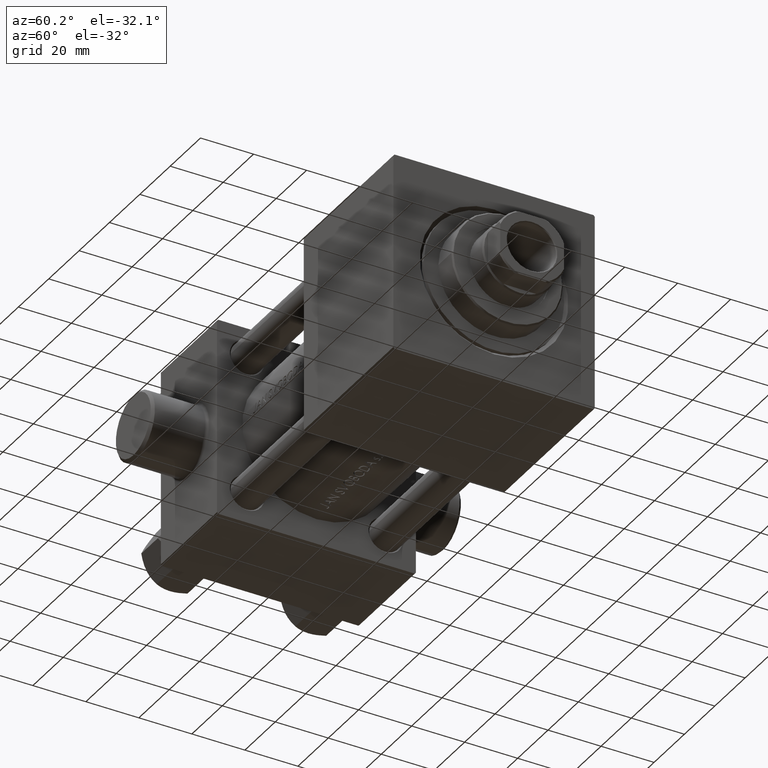
[diagram: clean part render]
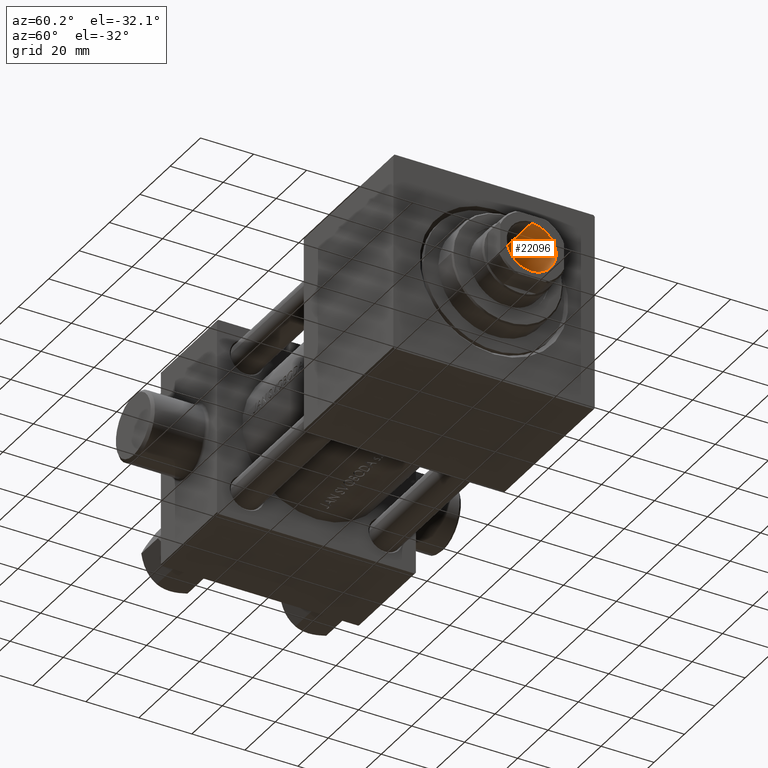
[diagram: same view with one face highlighted and labeled with its STEP entity id]
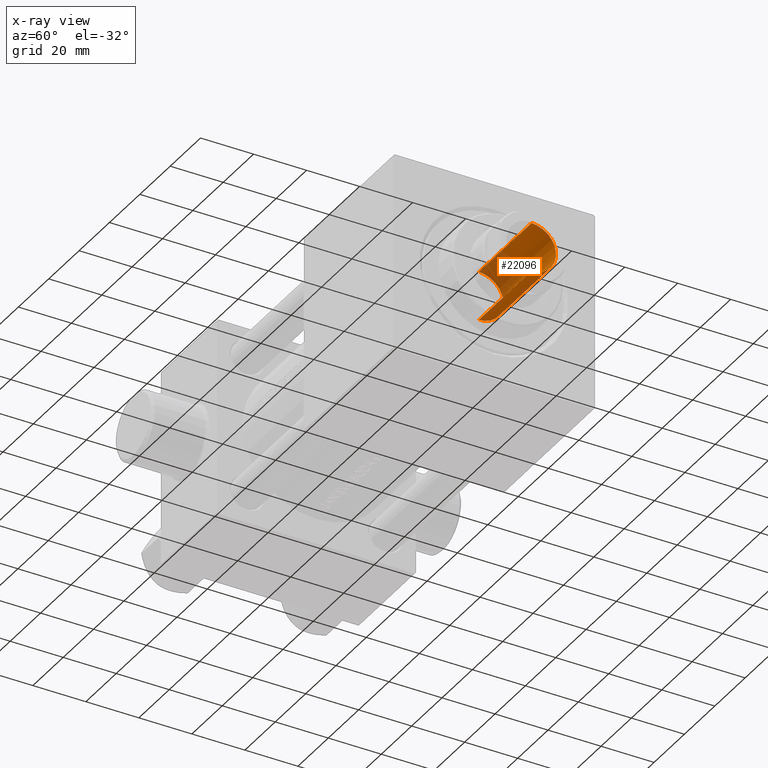
[diagram: x-ray of the same camera — body ghosted, the highlighted face saturated]
A machine part, auxiliary view. The second image highlights one B-rep face of the part: STEP entity #22096.
The next image is the same camera in x-ray: the body ghosted, the highlighted face saturated — about 29% of this face is hidden behind the body in this view.
In plain terms, the highlighted cylindrical surface (edge-blend (fillet) strip) has radius 9.25 mm, axis along (1, 0, 0).
Its self-contained STEP definition (entity closure, byte-faithful):
#444 = VERTEX_POINT ( 'NONE', #40981 ) ;
#2084 = LINE ( 'NONE', #2316, #32159 ) ;
#2246 = AXIS2_PLACEMENT_3D ( 'NONE', #27371, #6099, #2355 ) ;
#2316 = CARTESIAN_POINT ( 'NONE',  ( 9.249999999999994671, 0.000000000000000000, 142.0000000000000284 ) ) ;
#2355 = DIRECTION ( 'NONE',  ( 1.000000000000000000, 0.000000000000000000, 0.000000000000000000 ) ) ;
#6099 = DIRECTION ( 'NONE',  ( -0.000000000000000000, -0.000000000000000000, 1.000000000000000000 ) ) ;
#6186 = AXIS2_PLACEMENT_3D ( 'NONE', #40768, #37243, #26738 ) ;
#9135 = FACE_OUTER_BOUND ( 'NONE', #18140, .T. ) ;
#9475 = VERTEX_POINT ( 'NONE', #17159 ) ;
#13309 = CARTESIAN_POINT ( 'NONE',  ( 0.000000000000000000, 0.000000000000000000, 141.7000000000000171 ) ) ;
#17159 = CARTESIAN_POINT ( 'NONE',  ( -9.249999999999992895, 1.132798289211300712E-15, 107.0000000000000142 ) ) ;
#17643 = LINE ( 'NONE', #46191, #20971 ) ;
#18126 = CIRCLE ( 'NONE', #6186, 9.249999999999992895 ) ;
#18140 = EDGE_LOOP ( 'NONE', ( #29126, #31521, #18970, #22742 ) ) ;
#18970 = ORIENTED_EDGE ( 'NONE', *, *, #37876, .T. ) ;
#20971 = VECTOR ( 'NONE', #42435, 1000.000000000000000 ) ;
#21359 = VERTEX_POINT ( 'NONE', #43699 ) ;
#22096 = ADVANCED_FACE ( 'NONE', ( #9135 ), #30874, .F. ) ;
#22742 = ORIENTED_EDGE ( 'NONE', *, *, #23314, .F. ) ;
#23314 = EDGE_CURVE ( 'NONE', #33458, #444, #2084, .T. ) ;
#26647 = DIRECTION ( 'NONE',  ( 1.000000000000000000, 0.000000000000000000, 0.000000000000000000 ) ) ;
#26738 = DIRECTION ( 'NONE',  ( 1.000000000000000000, 0.000000000000000000, 0.000000000000000000 ) ) ;
#27371 = CARTESIAN_POINT ( 'NONE',  ( 0.000000000000000000, 0.000000000000000000, 142.0000000000000284 ) ) ;
#29126 = ORIENTED_EDGE ( 'NONE', *, *, #31976, .F. ) ;
#29925 = DIRECTION ( 'NONE',  ( -0.000000000000000000, -0.000000000000000000, 1.000000000000000000 ) ) ;
#30874 = CYLINDRICAL_SURFACE ( 'NONE', #2246, 9.249999999999994671 ) ;
#31521 = ORIENTED_EDGE ( 'NONE', *, *, #39097, .T. ) ;
#31976 = EDGE_CURVE ( 'NONE', #9475, #33458, #18126, .T. ) ;
#32159 = VECTOR ( 'NONE', #29925, 1000.000000000000000 ) ;
#33458 = VERTEX_POINT ( 'NONE', #36453 ) ;
#36453 = CARTESIAN_POINT ( 'NONE',  ( 9.249999999999992895, 0.000000000000000000, 107.0000000000000142 ) ) ;
#37243 = DIRECTION ( 'NONE',  ( -0.000000000000000000, -0.000000000000000000, 1.000000000000000000 ) ) ;
#37848 = DIRECTION ( 'NONE',  ( 0.000000000000000000, 0.000000000000000000, 1.000000000000000000 ) ) ;
#37876 = EDGE_CURVE ( 'NONE', #21359, #444, #40028, .T. ) ;
#39097 = EDGE_CURVE ( 'NONE', #9475, #21359, #17643, .T. ) ;
#40028 = CIRCLE ( 'NONE', #46047, 9.249999999999994671 ) ;
#40768 = CARTESIAN_POINT ( 'NONE',  ( 0.000000000000000000, 0.000000000000000000, 107.0000000000000142 ) ) ;
#40981 = CARTESIAN_POINT ( 'NONE',  ( 9.249999999999994671, 0.000000000000000000, 141.7000000000000171 ) ) ;
#42435 = DIRECTION ( 'NONE',  ( -0.000000000000000000, -0.000000000000000000, 1.000000000000000000 ) ) ;
#43699 = CARTESIAN_POINT ( 'NONE',  ( -9.249999999999994671, 1.132798289211300909E-15, 141.7000000000000171 ) ) ;
#46047 = AXIS2_PLACEMENT_3D ( 'NONE', #13309, #37848, #26647 ) ;
#46191 = CARTESIAN_POINT ( 'NONE',  ( -9.249999999999994671, 1.132798289211300909E-15, 142.0000000000000284 ) ) ;